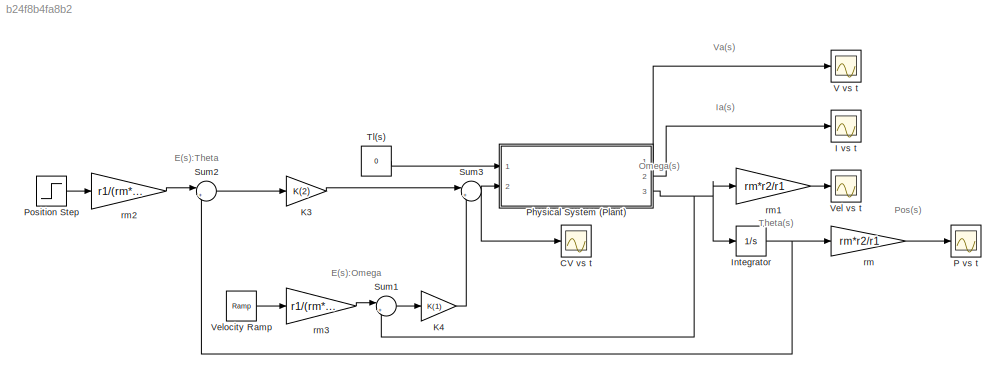
MODEL slx_b24f8b4fa8b2
KIND model
BLOCK [Scope] CV vs t
  Floating = off
  NumInputPorts = 1
  Ports = [1]
  SaveName = ScopeData4
  ShowLegends = off
  ZoomMode = yonly
BLOCK [Scope] I vs t
  Floating = off
  NumInputPorts = 1
  Ports = [1]
  SaveName = Current
  SaveToWorkspace = on
  ShowLegends = off
BLOCK [Integrator] Integrator
  Ports = [1, 1]
BLOCK [Gain] K3
  Gain = K(2)
  OutDataTypeStr = Inherit: Inherit via internal rule
  ParamDataTypeStr = Inherit: Inherit via internal rule
  SaturateOnIntegerOverflow = off
BLOCK [Gain] K4
  Gain = K(1)
  OutDataTypeStr = Inherit: Inherit via internal rule
  ParamDataTypeStr = Inherit: Inherit via internal rule
  SaturateOnIntegerOverflow = off
BLOCK [Scope] P vs t
  Floating = off
  NumInputPorts = 1
  Ports = [1]
  SaveName = Position
  SaveToWorkspace = on
  ShowLegends = off
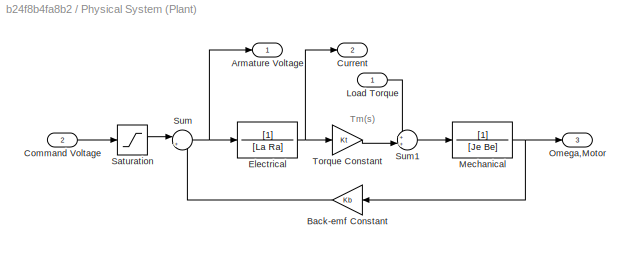
BLOCK [SubSystem] Physical System (Plant)
  Ports = [2, 3]
  RequestExecContextInheritance = off
BLOCK [Outport] Physical System (Plant)/Armature Voltage
  IconDisplay = Port number
BLOCK [Gain] Physical System (Plant)/Back-emf Constant
  Gain = Kb
  OutDataTypeStr = Inherit: Inherit via internal rule
  ParamDataTypeStr = Inherit: Inherit via internal rule
  SaturateOnIntegerOverflow = off
BLOCK [Inport] Physical System (Plant)/Command Voltage
  IconDisplay = Port number
  Port = 2
BLOCK [Outport] Physical System (Plant)/Current
  IconDisplay = Port number
  Port = 2
BLOCK [TransferFcn] Physical System (Plant)/Electrical
  Denominator = [La Ra]
BLOCK [Inport] Physical System (Plant)/Load Torque
  IconDisplay = Port number
BLOCK [TransferFcn] Physical System (Plant)/Mechanical
  Denominator = [Je Be]
BLOCK [Outport] Physical System (Plant)/Omega,Motor
  IconDisplay = Port number
  Port = 3
BLOCK [Saturate] Physical System (Plant)/Saturation
  InputPortMap = u0
  LowerLimit = -24
  Ports = [1, 1]
  UpperLimit = 24
BLOCK [Sum] Physical System (Plant)/Sum
  IconShape = round
  InputSameDT = off
  Inputs = |+-
  OutDataTypeStr = Inherit: Inherit via internal rule
  Ports = [2, 1]
  SaturateOnIntegerOverflow = off
BLOCK [Sum] Physical System (Plant)/Sum1
  IconShape = round
  InputSameDT = off
  Inputs = ++|
  OutDataTypeStr = Inherit: Inherit via internal rule
  Ports = [2, 1]
  SaturateOnIntegerOverflow = off
BLOCK [Gain] Physical System (Plant)/Torque Constant
  Gain = Kt
  OutDataTypeStr = Inherit: Inherit via internal rule
  ParamDataTypeStr = Inherit: Inherit via internal rule
  SaturateOnIntegerOverflow = off
BLOCK [Step] Position Step
  After = pos
  SampleTime = 0
  Time = 0
BLOCK [Sum] Sum1
  IconShape = round
  InputSameDT = off
  Inputs = |+-
  OutDataTypeStr = Inherit: Inherit via internal rule
  Ports = [2, 1]
  SaturateOnIntegerOverflow = off
BLOCK [Sum] Sum2
  IconShape = round
  InputSameDT = off
  Inputs = |+-
  OutDataTypeStr = Inherit: Inherit via internal rule
  Ports = [2, 1]
  SaturateOnIntegerOverflow = off
BLOCK [Sum] Sum3
  IconShape = round
  InputSameDT = off
  Inputs = |++
  OutDataTypeStr = Inherit: Inherit via internal rule
  Ports = [2, 1]
  SaturateOnIntegerOverflow = off
BLOCK [Constant] Tl(s)
  Value = 0
BLOCK [Scope] V vs t
  Floating = off
  NumInputPorts = 1
  Ports = [1]
  SaveName = Voltage
  SaveToWorkspace = on
  ShowLegends = off
  ZoomMode = yonly
BLOCK [Scope] Vel vs t
  Floating = off
  NumInputPorts = 1
  Ports = [1]
  SaveName = ScopeData3
  ShowLegends = off
BLOCK [Reference] Velocity Ramp  REF=simulink/Sources/Ramp
  Ports = [0, 1]
  SourceBlock = simulink/Sources/Ramp
  SourceType = Ramp
  VectorParams1D = on
  X0 = ramp
  slope = 1
  start = 0
BLOCK [Gain] rm
  Gain = rm*r2/r1
  OutDataTypeStr = Inherit: Inherit via internal rule
  ParamDataTypeStr = Inherit: Inherit via internal rule
  SaturateOnIntegerOverflow = off
BLOCK [Gain] rm1
  Gain = rm*r2/r1
  OutDataTypeStr = Inherit: Inherit via internal rule
  ParamDataTypeStr = Inherit: Inherit via internal rule
  SaturateOnIntegerOverflow = off
BLOCK [Gain] rm2
  Gain = r1/(rm*r2)
  OutDataTypeStr = Inherit: Inherit via internal rule
  ParamDataTypeStr = Inherit: Inherit via internal rule
  SaturateOnIntegerOverflow = off
BLOCK [Gain] rm3
  Gain = r1/(rm*r2)
  OutDataTypeStr = Inherit: Inherit via internal rule
  ParamDataTypeStr = Inherit: Inherit via internal rule
  SaturateOnIntegerOverflow = off
ANNOTATION (root): E(s):Omega
ANNOTATION (root): E(s):Theta
ANNOTATION (root): Ia(s)
ANNOTATION (root): Omega(s)
ANNOTATION (root): Pos(s)
ANNOTATION (root): Theta(s)
ANNOTATION (root): Va(s)
ANNOTATION Physical System (Plant): Tm(s)
NET Integrator:1 -> Sum2:2, rm:1
LINE K3:1 -> Sum3:1
LINE K4:1 -> Sum3:2
LINE Physical System (Plant)/Back-emf Constant:1 -> Physical System (Plant)/Sum:2
LINE Physical System (Plant)/Command Voltage:1 -> Physical System (Plant)/Saturation:1
NET Physical System (Plant)/Electrical:1 -> Physical System (Plant)/Current:1, Physical System (Plant)/Torque Constant:1
LINE Physical System (Plant)/Load Torque:1 -> Physical System (Plant)/Sum1:1
NET Physical System (Plant)/Mechanical:1 -> Physical System (Plant)/Back-emf Constant:1, Physical System (Plant)/Omega,Motor:1
LINE Physical System (Plant)/Saturation:1 -> Physical System (Plant)/Sum:1
LINE Physical System (Plant)/Sum1:1 -> Physical System (Plant)/Mechanical:1
NET Physical System (Plant)/Sum:1 -> Physical System (Plant)/Armature Voltage:1, Physical System (Plant)/Electrical:1
LINE Physical System (Plant)/Torque Constant:1 -> Physical System (Plant)/Sum1:2
LINE Physical System (Plant):1 -> V vs t:1
LINE Physical System (Plant):2 -> I vs t:1
NET Physical System (Plant):3 -> Integrator:1, Sum1:2, rm1:1
LINE Position Step:1 -> rm2:1
LINE Sum1:1 -> K4:1
LINE Sum2:1 -> K3:1
NET Sum3:1 -> CV vs t:1, Physical System (Plant):2
LINE Tl(s):1 -> Physical System (Plant):1
LINE Velocity Ramp:1 -> rm3:1
LINE rm1:1 -> Vel vs t:1
LINE rm2:1 -> Sum2:1
LINE rm3:1 -> Sum1:1
LINE rm:1 -> P vs t:1
note: NET lines group one-source signal fan-out (src -> all destinations, sorted); 1:1 wires keep LINE
